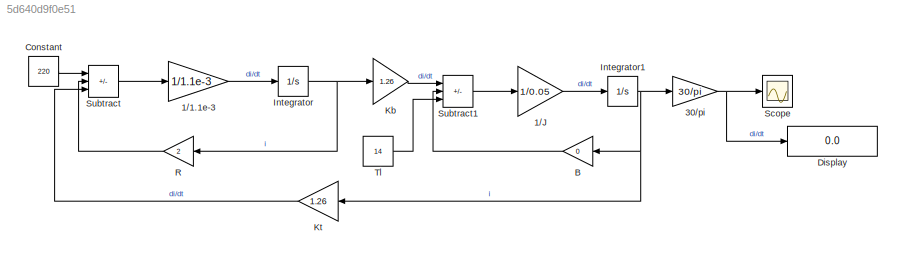
MODEL slx_5d640d9f0e51
KIND model
CONFIG AbsTol = auto
CONFIG EnableMultiTasking = off
CONFIG FixedStep = auto
CONFIG MaxStep = auto
CONFIG MinStep = auto
CONFIG RelTol = 1e-3
CONFIG SampleTimeConstraint = Unconstrained
CONFIG SolverName = VariableStepAuto
CONFIG StartTime = 0.0
CONFIG StopTime = 10.0
BLOCK [Gain] 1//1.1e-3
  Gain = 1/1.1e-3
  NameLocation = top
BLOCK [Gain] 1//J
  Gain = 1/0.05
BLOCK [Gain] 30//pi
  Gain = 30/pi
BLOCK [Gain] B
  Gain = 0
  NameLocation = top
BLOCK [Constant] Constant
  Value = 220
BLOCK [Display] Display
  Decimation = 1
BLOCK [Integrator] Integrator
BLOCK [Integrator] Integrator1
BLOCK [Gain] Kb
  Gain = 1.26
BLOCK [Gain] Kt
  Gain = 1.26
BLOCK [Gain] R
  Gain = 2
  NameLocation = top
BLOCK [Scope] Scope
  Floating = off
  NumInputPorts = 1
  ScopeSpecificationString = Simulink.scopes.TimeScopeBlockCfg('CurrentConfiguration', extmgr.ConfigurationSet(extmgr.Configuration('Core','General UI',true,'FigureColor',[1 1 1]),extmgr.Configuration('Core','Source UI',true),extmgr.Configuration('Sources','WiredSimulink',true),extmgr.Configuration('Visuals','Time Domain',true,'SerializedDisplays',{struct('MinYLimReal','-187.41614','MaxYLimReal','1686.30676','YLabelReal','Spe...<+1569ch>
BLOCK [Sum] Subtract
  IconShape = rectangular
  Inputs = +--
BLOCK [Sum] Subtract1
  IconShape = rectangular
  Inputs = +--
BLOCK [Constant] Tl
  Value = 14
LINE 1//1.1e-3:1 -> Integrator:1
LINE 1//J:1 -> Integrator1:1
NET 30//pi:1 -> Display:1, Scope:1
LINE B:1 -> Subtract1:2
LINE Constant:1 -> Subtract:1
NET Integrator1:1 -> 30//pi:1, B:1, Kt:1
NET Integrator:1 -> Kb:1, R:1
LINE Kb:1 -> Subtract1:1
LINE Kt:1 -> Subtract:3
LINE R:1 -> Subtract:2
LINE Subtract1:1 -> 1//J:1
LINE Subtract:1 -> 1//1.1e-3:1
LINE Tl:1 -> Subtract1:3
note: NET lines group one-source signal fan-out (src -> all destinations, sorted); 1:1 wires keep LINE
